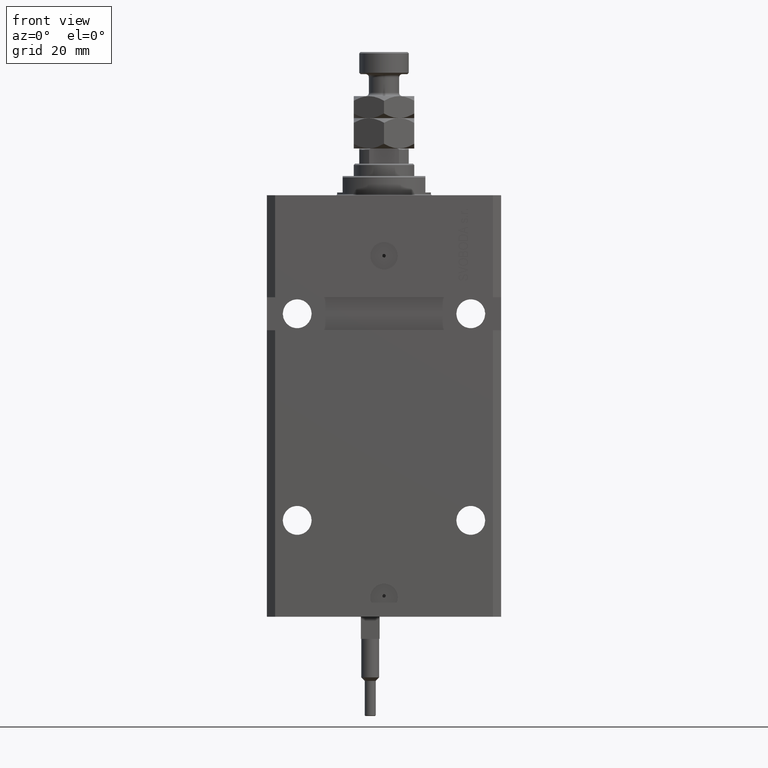
[diagram: clean part render]
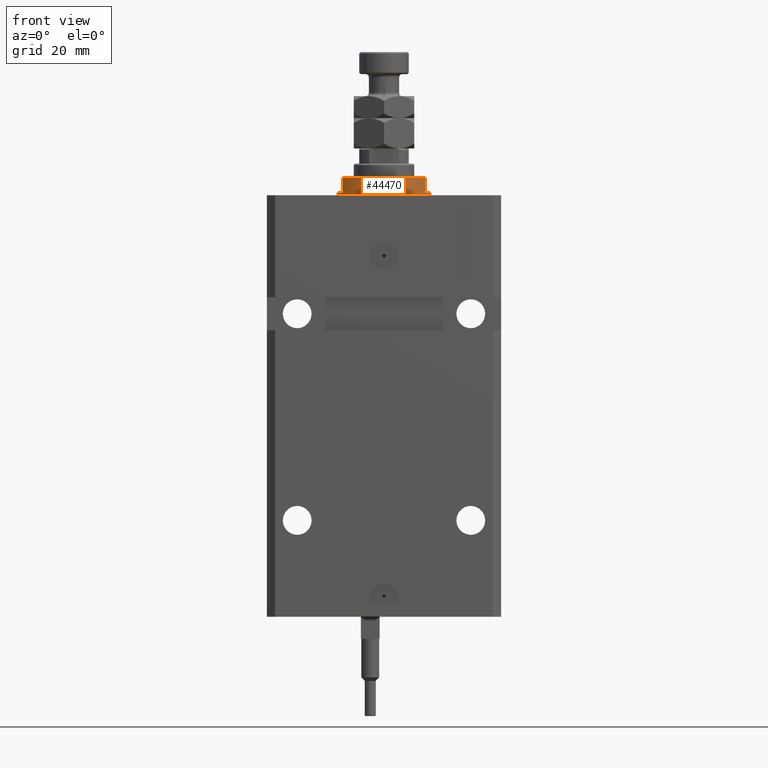
[diagram: same view with one face highlighted and labeled with its STEP entity id]
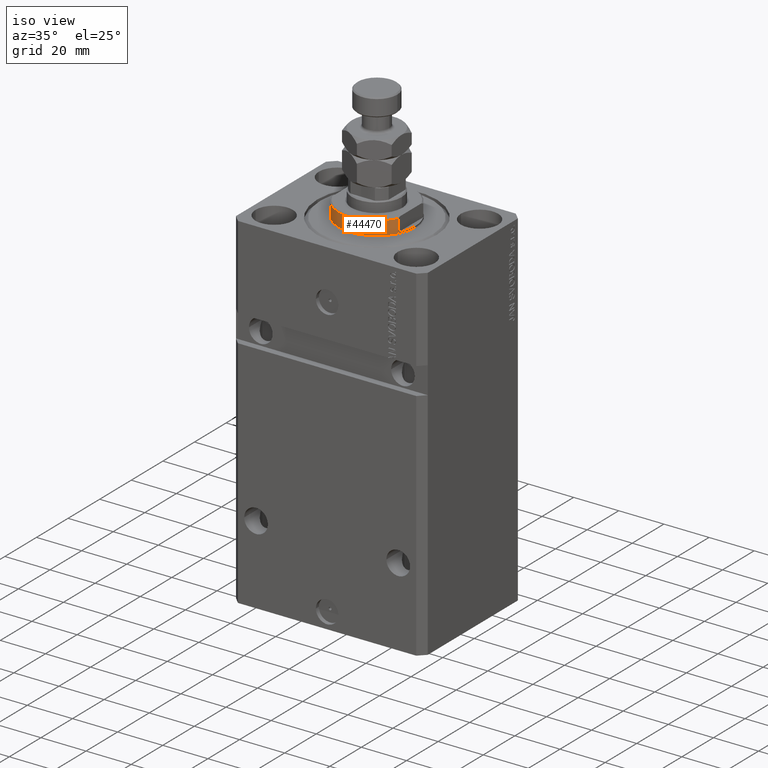
[diagram: same view with one face highlighted and labeled with its STEP entity id]
A machine part, front view. The second image highlights one B-rep face of the part: STEP entity #44470.
A second angle (iso view) of the same face is appended — the face is thin or edge-on in the first view.
In plain terms, the highlighted cylindrical surface (partial cylindrical patch) has radius 17 mm, axis along (0, 0, -1).
Its self-contained STEP definition (entity closure, byte-faithful):
#460 = CARTESIAN_POINT ( 'NONE',  ( -14.99999999999999645, -8.000000000000003553, -1.000000000000000000 ) ) ;
#586 = LINE ( 'NONE', #12100, #47670 ) ;
#1269 = CIRCLE ( 'NONE', #50260, 17.00000000000000000 ) ;
#1317 = CARTESIAN_POINT ( 'NONE',  ( 14.99999999999999645, -8.000000000000003553, -1.000000000000000000 ) ) ;
#1558 = VERTEX_POINT ( 'NONE', #20194 ) ;
#2473 = CARTESIAN_POINT ( 'NONE',  ( 0.000000000000000000, 0.000000000000000000, -6.500000000000013323 ) ) ;
#2684 = ORIENTED_EDGE ( 'NONE', *, *, #25209, .F. ) ;
#3445 = DIRECTION ( 'NONE',  ( -0.000000000000000000, -0.000000000000000000, -1.000000000000000000 ) ) ;
#4547 = VERTEX_POINT ( 'NONE', #1317 ) ;
#6309 = DIRECTION ( 'NONE',  ( 1.000000000000000000, 0.000000000000000000, 0.000000000000000000 ) ) ;
#7090 = DIRECTION ( 'NONE',  ( -0.000000000000000000, -0.000000000000000000, 1.000000000000000000 ) ) ;
#7970 = VERTEX_POINT ( 'NONE', #460 ) ;
#8090 = EDGE_CURVE ( 'NONE', #7970, #47872, #1269, .T. ) ;
#8200 = DIRECTION ( 'NONE',  ( -0.000000000000000000, -0.000000000000000000, 1.000000000000000000 ) ) ;
#10492 = VECTOR ( 'NONE', #8200, 1000.000000000000000 ) ;
#12091 = CARTESIAN_POINT ( 'NONE',  ( -17.00000000000000000, 2.081899558550500280E-15, -1.000000000000000000 ) ) ;
#12100 = CARTESIAN_POINT ( 'NONE',  ( -15.00000000000000000, -8.000000000000001776, -7.000000000000000000 ) ) ;
#12210 = EDGE_LOOP ( 'NONE', ( #2684, #26794, #28566, #23350, #46506, #40395, #47654, #48797 ) ) ;
#13428 = VERTEX_POINT ( 'NONE', #16723 ) ;
#14162 = CARTESIAN_POINT ( 'NONE',  ( 0.000000000000000000, 0.000000000000000000, -1.000000000000000000 ) ) ;
#14317 = CIRCLE ( 'NONE', #29831, 17.00000000000000000 ) ;
#14393 = EDGE_CURVE ( 'NONE', #28834, #1558, #36065, .T. ) ;
#14468 = DIRECTION ( 'NONE',  ( -0.000000000000000000, -0.000000000000000000, 1.000000000000000000 ) ) ;
#15691 = CARTESIAN_POINT ( 'NONE',  ( 0.000000000000000000, 0.000000000000000000, -0.4999999999999995559 ) ) ;
#15785 = DIRECTION ( 'NONE',  ( 0.000000000000000000, 0.000000000000000000, -1.000000000000000000 ) ) ;
#16723 = CARTESIAN_POINT ( 'NONE',  ( -15.00000000000000000, -8.000000000000001776, -6.500000000000014211 ) ) ;
#17326 = CARTESIAN_POINT ( 'NONE',  ( 0.000000000000000000, 0.000000000000000000, -1.000000000000000000 ) ) ;
#17633 = EDGE_CURVE ( 'NONE', #7970, #13428, #586, .T. ) ;
#17920 = EDGE_CURVE ( 'NONE', #4547, #40338, #21803, .T. ) ;
#18856 = CARTESIAN_POINT ( 'NONE',  ( 15.00000000000000000, -8.000000000000001776, -6.500000000000013323 ) ) ;
#20194 = CARTESIAN_POINT ( 'NONE',  ( 17.00000000000000000, 0.000000000000000000, -0.4999999999999995559 ) ) ;
#20666 = EDGE_CURVE ( 'NONE', #13428, #40338, #14317, .T. ) ;
#21803 = LINE ( 'NONE', #46238, #50114 ) ;
#22337 = DIRECTION ( 'NONE',  ( -1.000000000000000000, 0.000000000000000000, 0.000000000000000000 ) ) ;
#23345 = VECTOR ( 'NONE', #7090, 1000.000000000000000 ) ;
#23350 = ORIENTED_EDGE ( 'NONE', *, *, #20666, .T. ) ;
#25209 = EDGE_CURVE ( 'NONE', #47872, #43862, #42115, .T. ) ;
#25526 = DIRECTION ( 'NONE',  ( -1.000000000000000000, 0.000000000000000000, 0.000000000000000000 ) ) ;
#26049 = CARTESIAN_POINT ( 'NONE',  ( 17.00000000000000000, 0.000000000000000000, -1.000000000000000000 ) ) ;
#26794 = ORIENTED_EDGE ( 'NONE', *, *, #8090, .F. ) ;
#27440 = DIRECTION ( 'NONE',  ( 0.000000000000000000, 0.000000000000000000, -1.000000000000000000 ) ) ;
#28348 = EDGE_CURVE ( 'NONE', #1558, #43862, #43859, .T. ) ;
#28566 = ORIENTED_EDGE ( 'NONE', *, *, #17633, .T. ) ;
#28834 = VERTEX_POINT ( 'NONE', #26049 ) ;
#29814 = DIRECTION ( 'NONE',  ( 0.000000000000000000, 0.000000000000000000, 1.000000000000000000 ) ) ;
#29831 = AXIS2_PLACEMENT_3D ( 'NONE', #2473, #29814, #49753 ) ;
#29941 = CARTESIAN_POINT ( 'NONE',  ( -17.00000000000000000, 2.081899558550500280E-15, -0.4999999999999995559 ) ) ;
#30443 = EDGE_CURVE ( 'NONE', #28834, #4547, #48841, .T. ) ;
#30502 = DIRECTION ( 'NONE',  ( 0.000000000000000000, 0.000000000000000000, -1.000000000000000000 ) ) ;
#32516 = AXIS2_PLACEMENT_3D ( 'NONE', #14162, #30502, #22337 ) ;
#33907 = FACE_OUTER_BOUND ( 'NONE', #12210, .T. ) ;
#36065 = LINE ( 'NONE', #39384, #10492 ) ;
#38236 = CARTESIAN_POINT ( 'NONE',  ( 0.000000000000000000, 0.000000000000000000, -7.000000000000000000 ) ) ;
#38280 = CARTESIAN_POINT ( 'NONE',  ( -17.00000000000000000, 2.081899558550500280E-15, -7.000000000000000000 ) ) ;
#38710 = DIRECTION ( 'NONE',  ( 1.000000000000000000, 0.000000000000000000, 0.000000000000000000 ) ) ;
#39384 = CARTESIAN_POINT ( 'NONE',  ( 17.00000000000000000, 0.000000000000000000, -7.000000000000000000 ) ) ;
#40338 = VERTEX_POINT ( 'NONE', #18856 ) ;
#40395 = ORIENTED_EDGE ( 'NONE', *, *, #30443, .F. ) ;
#40677 = AXIS2_PLACEMENT_3D ( 'NONE', #38236, #14468, #6309 ) ;
#42115 = LINE ( 'NONE', #38280, #23345 ) ;
#42222 = AXIS2_PLACEMENT_3D ( 'NONE', #15691, #3445, #38710 ) ;
#43859 = CIRCLE ( 'NONE', #42222, 17.00000000000000000 ) ;
#43862 = VERTEX_POINT ( 'NONE', #29941 ) ;
#44470 = ADVANCED_FACE ( 'NONE', ( #33907 ), #49503, .T. ) ;
#46238 = CARTESIAN_POINT ( 'NONE',  ( 15.00000000000000000, -8.000000000000001776, -7.000000000000000000 ) ) ;
#46506 = ORIENTED_EDGE ( 'NONE', *, *, #17920, .F. ) ;
#47654 = ORIENTED_EDGE ( 'NONE', *, *, #14393, .T. ) ;
#47670 = VECTOR ( 'NONE', #27440, 1000.000000000000000 ) ;
#47872 = VERTEX_POINT ( 'NONE', #12091 ) ;
#48522 = DIRECTION ( 'NONE',  ( 0.000000000000000000, 0.000000000000000000, -1.000000000000000000 ) ) ;
#48797 = ORIENTED_EDGE ( 'NONE', *, *, #28348, .T. ) ;
#48841 = CIRCLE ( 'NONE', #32516, 17.00000000000000000 ) ;
#49503 = CYLINDRICAL_SURFACE ( 'NONE', #40677, 17.00000000000000000 ) ;
#49753 = DIRECTION ( 'NONE',  ( -1.000000000000000000, 0.000000000000000000, 0.000000000000000000 ) ) ;
#50114 = VECTOR ( 'NONE', #15785, 1000.000000000000000 ) ;
#50260 = AXIS2_PLACEMENT_3D ( 'NONE', #17326, #48522, #25526 ) ;